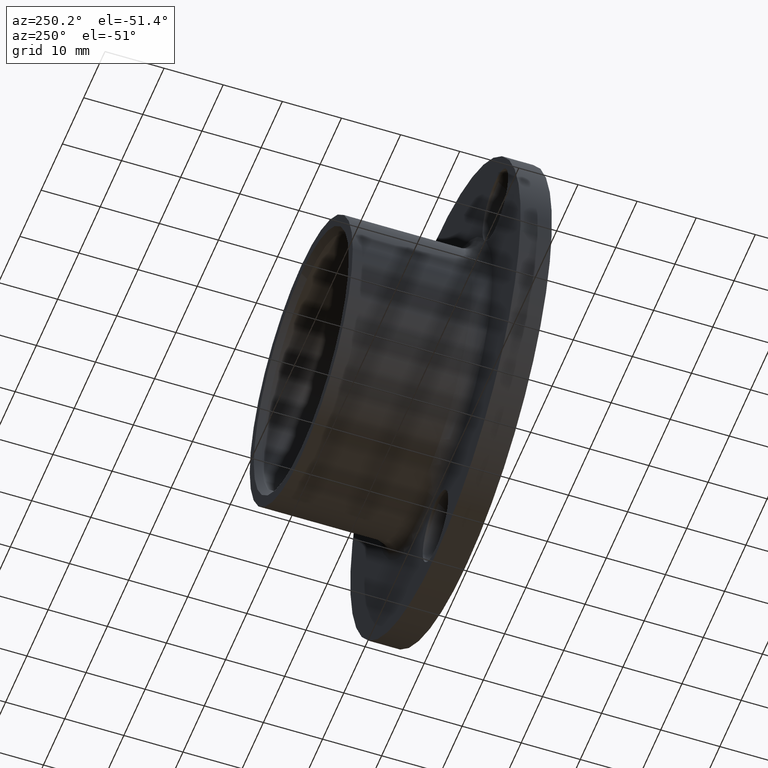
[diagram: clean part render]
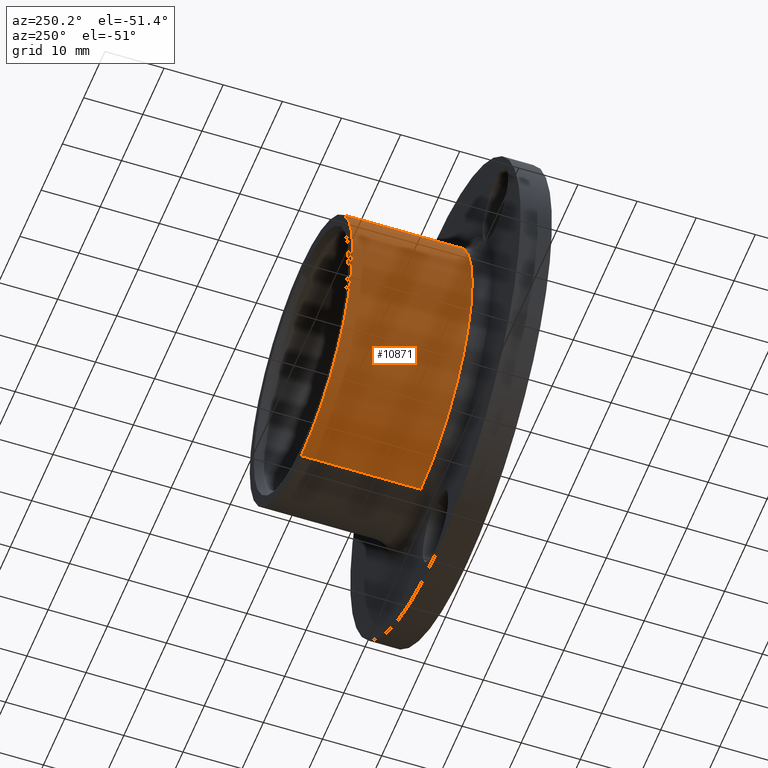
[diagram: same view with one face highlighted and labeled with its STEP entity id]
A machine part, auxiliary view. The second image highlights one B-rep face of the part: STEP entity #10871.
In plain terms, the highlighted cylindrical surface (partial cylindrical patch) has radius 24.2 mm, axis along (-0, -1, -0).
Its self-contained STEP definition (entity closure, byte-faithful):
#219 = VERTEX_POINT ( 'NONE', #13228 ) ;
#368 = CARTESIAN_POINT ( 'NONE',  ( 2.963645287965082026E-15, 20.09999999999999076, 24.19999999999999929 ) ) ;
#803 = DIRECTION ( 'NONE',  ( 0.000000000000000000, 0.000000000000000000, -1.000000000000000000 ) ) ;
#885 = EDGE_CURVE ( 'NONE', #1054, #18910, #20321, .T. ) ;
#1054 = VERTEX_POINT ( 'NONE', #368 ) ;
#1077 = VECTOR ( 'NONE', #3173, 1000.000000000000000 ) ;
#1762 = CARTESIAN_POINT ( 'NONE',  ( -0.9315997890939373693, 16.11292259646031866, 24.18239648146831655 ) ) ;
#1770 = VERTEX_POINT ( 'NONE', #18803 ) ;
#1832 = CARTESIAN_POINT ( 'NONE',  ( -1.280550876789933845, 16.32995857932808192, 24.16636617197359271 ) ) ;
#2156 = LINE ( 'NONE', #6394, #7602 ) ;
#2550 = ORIENTED_EDGE ( 'NONE', *, *, #15388, .T. ) ;
#2560 = CIRCLE ( 'NONE', #13018, 24.19999999999999574 ) ;
#2767 = CARTESIAN_POINT ( 'NONE',  ( 2.963645287965082026E-15, 20.09999999999999076, 24.19999999999999929 ) ) ;
#2859 = VERTEX_POINT ( 'NONE', #15921 ) ;
#3047 = CARTESIAN_POINT ( 'NONE',  ( 2.963645253938355740E-15, 15.90000000000001457, 24.19999999999999929 ) ) ;
#3117 = CARTESIAN_POINT ( 'NONE',  ( -2.044891591270483922, 17.44926526587234505, 24.11367775620412246 ) ) ;
#3173 = DIRECTION ( 'NONE',  ( -0.000000000000000000, -1.000000000000000000, -0.000000000000000000 ) ) ;
#3254 = DIRECTION ( 'NONE',  ( -0.000000000000000000, -1.000000000000000000, -0.000000000000000000 ) ) ;
#3528 = AXIS2_PLACEMENT_3D ( 'NONE', #18347, #13594, #8825 ) ;
#3530 = CIRCLE ( 'NONE', #3528, 24.19999999999999929 ) ;
#4050 = CARTESIAN_POINT ( 'NONE',  ( 2.963645253936594609E-15, 0.000000000000000000, 24.19999999999999929 ) ) ;
#4710 = CARTESIAN_POINT ( 'NONE',  ( -1.887531327446905882, 18.93068423809030065, 24.12633452015320046 ) ) ;
#4781 = CARTESIAN_POINT ( 'NONE',  ( -2.099999999999988098, 18.13705712244530233, 24.10871211823643279 ) ) ;
#5129 = FACE_OUTER_BOUND ( 'NONE', #8767, .T. ) ;
#5635 = DIRECTION ( 'NONE',  ( -0.000000000000000000, -1.000000000000000000, -0.000000000000000000 ) ) ;
#6350 = ORIENTED_EDGE ( 'NONE', *, *, #16101, .T. ) ;
#6382 = CARTESIAN_POINT ( 'NONE',  ( -2.099999999999988098, 18.00000000000000355, 24.10871211823642923 ) ) ;
#6394 = CARTESIAN_POINT ( 'NONE',  ( 2.963645253936594609E-15, 0.000000000000000000, 24.19999999999999929 ) ) ;
#6831 = EDGE_CURVE ( 'NONE', #18910, #19042, #17462, .T. ) ;
#7348 = CARTESIAN_POINT ( 'NONE',  ( -1.669790900634261277, 19.28081964653701164, 24.14244405602889287 ) ) ;
#7369 = CYLINDRICAL_SURFACE ( 'NONE', #16824, 24.19999999999999929 ) ;
#7566 = CARTESIAN_POINT ( 'NONE',  ( -0.9306494016848489981, 19.88754481466036950, 24.18243311320055255 ) ) ;
#7602 = VECTOR ( 'NONE', #16234, 1000.000000000000000 ) ;
#7889 = ORIENTED_EDGE ( 'NONE', *, *, #16288, .F. ) ;
#7911 = CARTESIAN_POINT ( 'NONE',  ( -1.388564633608738053, 16.41865729109347072, 24.16032483723596869 ) ) ;
#8245 = CARTESIAN_POINT ( 'NONE',  ( 2.963645253938355740E-15, 15.90000000000001457, 24.19999999999999929 ) ) ;
#8315 = CARTESIAN_POINT ( 'NONE',  ( 2.963645253936594214E-15, 28.00000000000000000, 24.19999999999999574 ) ) ;
#8714 = LINE ( 'NONE', #12705, #1077 ) ;
#8767 = EDGE_LOOP ( 'NONE', ( #7889, #2550, #6350, #14863, #16938, #13045, #19059 ) ) ;
#8825 = DIRECTION ( 'NONE',  ( 0.000000000000000000, 0.000000000000000000, -1.000000000000000000 ) ) ;
#9122 = CARTESIAN_POINT ( 'NONE',  ( -1.053494337162454997, 19.82177306931128058, 24.17732632263393455 ) ) ;
#9600 = CARTESIAN_POINT ( 'NONE',  ( -0.2752225544756577991, 15.91361520568556465, 24.19880769119056296 ) ) ;
#9858 = CARTESIAN_POINT ( 'NONE',  ( 0.000000000000000000, 0.000000000000000000, 0.000000000000000000 ) ) ;
#10017 = CARTESIAN_POINT ( 'NONE',  ( 0.000000000000000000, 28.00000000000000000, 0.000000000000000000 ) ) ;
#10702 = CARTESIAN_POINT ( 'NONE',  ( -1.582952722367729992, 19.38689460624354055, 24.14837271665926366 ) ) ;
#10871 = ADVANCED_FACE ( 'NONE', ( #5129 ), #7369, .T. ) ;
#11718 = EDGE_CURVE ( 'NONE', #19042, #1770, #2156, .T. ) ;
#11752 = VERTEX_POINT ( 'NONE', #8315 ) ;
#12643 = CARTESIAN_POINT ( 'NONE',  ( -2.099999999999988098, 18.00000000000000355, 24.10871211823642923 ) ) ;
#12705 = CARTESIAN_POINT ( 'NONE',  ( 0.000000000000000000, 0.000000000000000000, -24.19999999999999929 ) ) ;
#12715 = CARTESIAN_POINT ( 'NONE',  ( -0.6773567865493190787, 16.00748222650198116, 24.19085293117394286 ) ) ;
#13018 = AXIS2_PLACEMENT_3D ( 'NONE', #10017, #16311, #803 ) ;
#13045 = ORIENTED_EDGE ( 'NONE', *, *, #6831, .F. ) ;
#13228 = CARTESIAN_POINT ( 'NONE',  ( 0.000000000000000000, 7.799999999999999822, -24.19999999999999929 ) ) ;
#13594 = DIRECTION ( 'NONE',  ( -0.000000000000000000, -1.000000000000000000, -0.000000000000000000 ) ) ;
#13614 = CARTESIAN_POINT ( 'NONE',  ( -1.386913215241566855, 19.58293641801152063, 24.16042458065117060 ) ) ;
#13822 = CARTESIAN_POINT ( 'NONE',  ( -0.6763916905697583415, 19.99284420292600828, 24.19087997291961400 ) ) ;
#14253 = CARTESIAN_POINT ( 'NONE',  ( -0.5438186330590036865, 15.96701936586291559, 24.19426176646134508 ) ) ;
#14323 = DIRECTION ( 'NONE',  ( 0.000000000000000000, 0.000000000000000000, -1.000000000000000000 ) ) ;
#14391 = CARTESIAN_POINT ( 'NONE',  ( -2.099999999999988542, 17.72575037961606625, 24.10871211823643634 ) ) ;
#14415 = LINE ( 'NONE', #4050, #20087 ) ;
#14863 = ORIENTED_EDGE ( 'NONE', *, *, #20319, .F. ) ;
#15198 = CARTESIAN_POINT ( 'NONE',  ( -0.2761828551749103133, 20.08628287926948630, 24.19879872841144319 ) ) ;
#15388 = EDGE_CURVE ( 'NONE', #11752, #2859, #2560, .T. ) ;
#15406 = CARTESIAN_POINT ( 'NONE',  ( -0.5454904150420263331, 20.03255834576102501, 24.19422611026765324 ) ) ;
#15624 = CARTESIAN_POINT ( 'NONE',  ( -1.992867830663286544, 18.67633236846288014, 24.11786204662297450 ) ) ;
#15760 = CARTESIAN_POINT ( 'NONE',  ( -1.679000253095030315, 16.70926990854391647, 24.14246445746555736 ) ) ;
#15921 = CARTESIAN_POINT ( 'NONE',  ( 0.000000000000000000, 28.00000000000000000, -24.19999999999999574 ) ) ;
#16035 = CARTESIAN_POINT ( 'NONE',  ( -2.099999999999988098, 18.00000000000000355, 24.10871211823642923 ) ) ;
#16101 = EDGE_CURVE ( 'NONE', #2859, #219, #8714, .T. ) ;
#16234 = DIRECTION ( 'NONE',  ( -0.000000000000000000, -1.000000000000000000, -0.000000000000000000 ) ) ;
#16288 = EDGE_CURVE ( 'NONE', #11752, #1054, #14415, .T. ) ;
#16311 = DIRECTION ( 'NONE',  ( -0.000000000000000000, -1.000000000000000000, -0.000000000000000000 ) ) ;
#16824 = AXIS2_PLACEMENT_3D ( 'NONE', #9858, #3254, #14323 ) ;
#16938 = ORIENTED_EDGE ( 'NONE', *, *, #11718, .F. ) ;
#16988 = CARTESIAN_POINT ( 'NONE',  ( -0.1370123467861794619, 20.09999999999999076, 24.19999999999999574 ) ) ;
#17329 = CARTESIAN_POINT ( 'NONE',  ( -1.835457962409243526, 16.94359835495589195, 24.13052280035248032 ) ) ;
#17399 = CARTESIAN_POINT ( 'NONE',  ( -0.1387453317587689916, 15.90000000000001101, 24.19999999999999218 ) ) ;
#17462 = B_SPLINE_CURVE_WITH_KNOTS ( 'NONE', 3,
 ( #12643, #14391, #3117, #17329, #15760, #7911, #1832, #17537, #1762, #12715, #14253, #9600, #17399, #3047 ),
 .UNSPECIFIED., .F., .F.,
 ( 4, 2, 2, 2, 2, 2, 4 ),
 ( 0.006568643771950774882, 0.007389940567918377480, 0.008211237363885980078, 0.008621885761869776607, 0.009032534159853574871, 0.009443182557837371399, 0.009853830955821169663 ),
 .UNSPECIFIED. ) ;
#17537 = CARTESIAN_POINT ( 'NONE',  ( -1.052216412399052725, 16.17744972187722396, 24.17738416635338083 ) ) ;
#18347 = CARTESIAN_POINT ( 'NONE',  ( 0.000000000000000000, 7.799999999999999822, 0.000000000000000000 ) ) ;
#18367 = CARTESIAN_POINT ( 'NONE',  ( -1.821796575213082692, 19.05345045319561947, 24.13144968477583774 ) ) ;
#18803 = CARTESIAN_POINT ( 'NONE',  ( 2.963645253936594609E-15, 7.799999999999999822, 24.19999999999999929 ) ) ;
#18808 = CARTESIAN_POINT ( 'NONE',  ( -2.032567725965780170, 18.54543765172259029, 24.11450589572758929 ) ) ;
#18910 = VERTEX_POINT ( 'NONE', #16035 ) ;
#19042 = VERTEX_POINT ( 'NONE', #8245 ) ;
#19059 = ORIENTED_EDGE ( 'NONE', *, *, #885, .F. ) ;
#19275 = CARTESIAN_POINT ( 'NONE',  ( -2.086266772720473561, 18.27626933524525654, 24.10991947536867031 ) ) ;
#20087 = VECTOR ( 'NONE', #5635, 1000.000000000000000 ) ;
#20168 = CARTESIAN_POINT ( 'NONE',  ( -1.280899569581970709, 19.66973163327102370, 24.16634549786553166 ) ) ;
#20319 = EDGE_CURVE ( 'NONE', #1770, #219, #3530, .T. ) ;
#20321 = B_SPLINE_CURVE_WITH_KNOTS ( 'NONE', 3,
 ( #2767, #16988, #15198, #15406, #13822, #7566, #9122, #20168, #13614, #10702, #7348, #18367, #4710, #15624, #18808, #19275, #4781, #6382 ),
 .UNSPECIFIED., .F., .F.,
 ( 4, 2, 2, 2, 2, 2, 2, 2, 4 ),
 ( 0.003285078226918404943, 0.003695523920047451023, 0.004105969613176497536, 0.004516415306305543616, 0.004926860999434589695, 0.005337306692563636643, 0.005747752385692682722, 0.006158198078821728802, 0.006568643771950774882 ),
 .UNSPECIFIED. ) ;